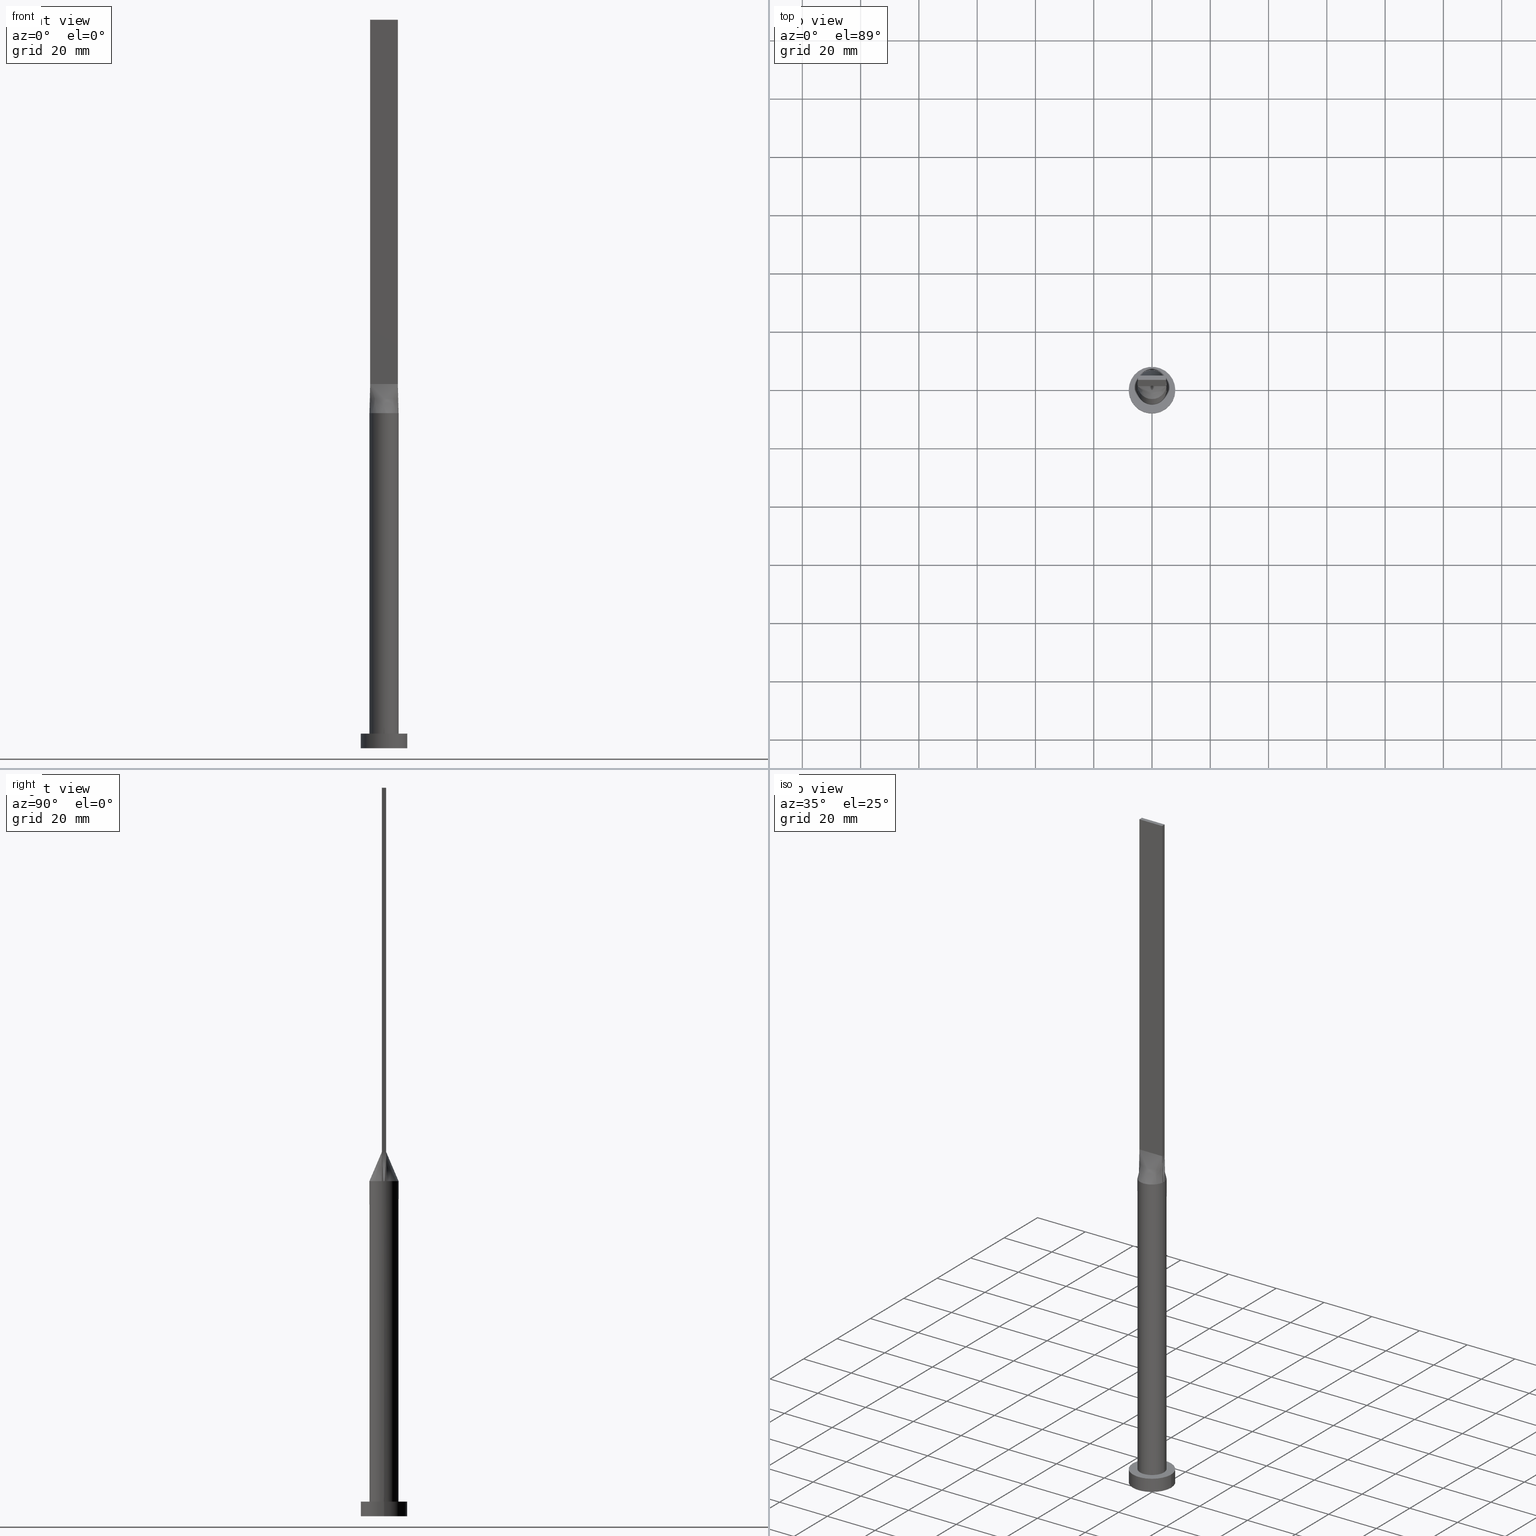
[diagram: canonical four-view strip — front | top / right | iso, engineering-drawing reading convention]
A machine part, canonical four-view strip (front | top / right | iso — engineering-drawing reading convention). The complete STEP part file that produces these views, byte-faithful:
ISO-10303-21;
HEADER;
FILE_DESCRIPTION (( 'STEP AP203' ),
    '1' );
FILE_NAME ('6021.STEP',
    '2023-02-13T09:52:25',
    ( '' ),
    ( '' ),
    'SwSTEP 2.0',
    'SolidWorks 2019',
    '' );
FILE_SCHEMA (( 'CONFIG_CONTROL_DESIGN' ));
ENDSEC;

DATA;
#1 = ORIENTED_EDGE ( 'NONE', *, *, #96, .T. ) ;
#2 = LINE ( 'NONE', #451, #165 ) ;
#3 = CARTESIAN_POINT ( 'NONE',  ( -5.000000000000000000, 0.000000000000000000, 115.0000000000000000 ) ) ;
#4 = CARTESIAN_POINT ( 'NONE',  ( 5.000000000000000000, 6.123233995736766282E-16, 5.000000000000000000 ) ) ;
#5 = VERTEX_POINT ( 'NONE', #126 ) ;
#6 = PLANE ( 'NONE',  #558 ) ;
#7 = ORIENTED_EDGE ( 'NONE', *, *, #380, .F. ) ;
#8 = CARTESIAN_POINT ( 'NONE',  ( -2.177083333333329485, -0.7499999999999995559, 125.0000000000000000 ) ) ;
#9 = DIRECTION ( 'NONE',  ( -0.000000000000000000, -0.000000000000000000, -1.000000000000000000 ) ) ;
#10 = LINE ( 'NONE', #102, #618 ) ;
#11 = CIRCLE ( 'NONE', #471, 8.000000000000000000 ) ;
#12 = ORGANIZATION ( 'NEUR�EN�', 'NEUR�EN�', '' ) ;
#13 = ORIENTED_EDGE ( 'NONE', *, *, #565, .T. ) ;
#14 = CYLINDRICAL_SURFACE ( 'NONE', #71, 8.000000000000000000 ) ;
#15 = DIRECTION ( 'NONE',  ( -0.01887803397728733332, -0.002980742206940063810, -0.9998173508241633423 ) ) ;
#16 = DIRECTION ( 'NONE',  ( -0.000000000000000000, -0.000000000000000000, -1.000000000000000000 ) ) ;
#17 = CARTESIAN_POINT ( 'NONE',  ( 0.000000000000000000, 0.000000000000000000, 115.0000000000000000 ) ) ;
#18 = LINE ( 'NONE', #146, #548 ) ;
#19 = CARTESIAN_POINT ( 'NONE',  ( 2.353781608410061121, -4.424438117685769889, 114.9999999999999716 ) ) ;
#20 = CC_DESIGN_PERSON_AND_ORGANIZATION_ASSIGNMENT ( #330, #185, ( #294 ) ) ;
#21 = CARTESIAN_POINT ( 'NONE',  ( -0.3560391241594593192, 5.000000000000000000, 115.0000000000000426 ) ) ;
#22 = EDGE_LOOP ( 'NONE', ( #478, #386, #287, #105, #353 ) ) ;
#23 = CARTESIAN_POINT ( 'NONE',  ( 0.7119876437238003009, -4.961551549233181646, 115.0000000000000142 ) ) ;
#24 = CIRCLE ( 'NONE', #135, 5.000000000000000000 ) ;
#25 = APPROVAL_PERSON_ORGANIZATION ( #235, #124, #84 ) ;
#26 = CARTESIAN_POINT ( 'NONE',  ( 1.732223102076450250, 4.702695359254404295, 114.9999999999999716 ) ) ;
#27 = ADVANCED_FACE ( 'NONE', ( #130 ), #611, .T. ) ;
#28 = CARTESIAN_POINT ( 'NONE',  ( 0.000000000000000000, 0.000000000000000000, 5.000000000000000000 ) ) ;
#29 = CARTESIAN_POINT ( 'NONE',  ( 1.583333333333338588, -0.7499999999999997780, 125.0000000000000000 ) ) ;
#30 = CARTESIAN_POINT ( 'NONE',  ( -1.732223102076449806, 4.702695359254402518, 114.9999999999999858 ) ) ;
#31 = CARTESIAN_POINT ( 'NONE',  ( 4.750000000000000000, 0.7500000000000002220, 125.0000000000000000 ) ) ;
#32 = VERTEX_POINT ( 'NONE', #182 ) ;
#33 =( LENGTH_UNIT ( ) NAMED_UNIT ( * ) SI_UNIT ( .MILLI., .METRE. ) );
#34 = CARTESIAN_POINT ( 'NONE',  ( 1.400150253878312823, 4.812847332616943419, 115.0000000000000000 ) ) ;
#35 = DIRECTION ( 'NONE',  ( 0.000000000000000000, 0.000000000000000000, 1.000000000000000000 ) ) ;
#36 = EDGE_CURVE ( 'NONE', #321, #604, #570, .T. ) ;
#37 = APPROVAL_DATE_TIME ( #237, #124 ) ;
#38 = ORIENTED_EDGE ( 'NONE', *, *, #539, .F. ) ;
#39 = DIRECTION ( 'NONE',  ( 1.000000000000000000, -6.847592668329501559E-17, 0.000000000000000000 ) ) ;
#40 = PERSON_AND_ORGANIZATION ( #408, #12 ) ;
#41 = LOCAL_TIME ( 10, 52, 25.00000000000000000, #189 ) ;
#42 = EDGE_LOOP ( 'NONE', ( #419, #236, #435, #7, #238, #52 ) ) ;
#43 = APPLICATION_CONTEXT ( 'configuration controlled 3d designs of mechanical parts and assemblies' ) ;
#44 = CARTESIAN_POINT ( 'NONE',  ( 0.000000000000000000, 0.000000000000000000, 115.0000000000000000 ) ) ;
#45 = ORIENTED_EDGE ( 'NONE', *, *, #463, .T. ) ;
#46 = CIRCLE ( 'NONE', #376, 5.000000000000000000 ) ;
#47 = CARTESIAN_POINT ( 'NONE',  ( 4.750000000000000000, -0.7499999999999997780, 250.0000000000000000 ) ) ;
#48 = FACE_OUTER_BOUND ( 'NONE', #42, .T. ) ;
#49 = EDGE_CURVE ( 'NONE', #432, #339, #234, .T. ) ;
#50 = DIRECTION ( 'NONE',  ( -1.000000000000000000, 0.000000000000000000, 0.000000000000000000 ) ) ;
#51 = DIRECTION ( 'NONE',  ( 1.000000000000000000, 0.000000000000000000, 0.000000000000000000 ) ) ;
#52 = ORIENTED_EDGE ( 'NONE', *, *, #576, .F. ) ;
#53 = CARTESIAN_POINT ( 'NONE',  ( 4.938814826645345768, 0.7798128673650538412, 115.0000000000000000 ) ) ;
#54 = DIRECTION ( 'NONE',  ( 1.000000000000000000, 0.000000000000000000, 0.000000000000000000 ) ) ;
#55 = CARTESIAN_POINT ( 'NONE',  ( 2.353781608410062454, 4.424438117685770777, 115.0000000000000000 ) ) ;
#56 = VERTEX_POINT ( 'NONE', #427 ) ;
#57 = DIRECTION ( 'NONE',  ( -1.000000000000000000, 0.000000000000000000, 0.000000000000000000 ) ) ;
#58 = FACE_OUTER_BOUND ( 'NONE', #282, .T. ) ;
#59 = EDGE_CURVE ( 'NONE', #584, #515, #524, .T. ) ;
#60 = CARTESIAN_POINT ( 'NONE',  ( -4.938814826645345768, -0.7798128673650532861, 115.0000000000000000 ) ) ;
#61 = VECTOR ( 'NONE', #245, 1000.000000000000000 ) ;
#62 = DIRECTION ( 'NONE',  ( -0.000000000000000000, -0.000000000000000000, -1.000000000000000000 ) ) ;
#63 = SHAPE_DEFINITION_REPRESENTATION ( #448, #281 ) ;
#64 = DIRECTION ( 'NONE',  ( 1.000000000000000000, 0.000000000000000000, 0.000000000000000000 ) ) ;
#65 = CARTESIAN_POINT ( 'NONE',  ( 3.404830936252118967, -3.673931880027069496, 115.0000000000000568 ) ) ;
#66 = CARTESIAN_POINT ( 'NONE',  ( 4.999625637456156291, 0.2615280553041483547, 115.0000000000000000 ) ) ;
#67 = CARTESIAN_POINT ( 'NONE',  ( -0.9895833333333280413, -0.7499999999999995559, 125.0000000000000000 ) ) ;
#68 = CARTESIAN_POINT ( 'NONE',  ( -1.385416666666718255, 0.7500000000000002220, 125.0000000000000000 ) ) ;
#69 = VERTEX_POINT ( 'NONE', #133 ) ;
#70 = CARTESIAN_POINT ( 'NONE',  ( 4.354166666666667851, -0.7499999999999997780, 125.0000000000000000 ) ) ;
#71 = AXIS2_PLACEMENT_3D ( 'NONE', #208, #403, #544 ) ;
#72 = AXIS2_PLACEMENT_3D ( 'NONE', #506, #106, #268 ) ;
#73 = CARTESIAN_POINT ( 'NONE',  ( -4.029217956433124748, 3.021257902548482033, 115.0000000000000000 ) ) ;
#74 = CARTESIAN_POINT ( 'NONE',  ( -4.029217956433124748, 3.021257902548482033, 115.0000000000000000 ) ) ;
#75 = CARTESIAN_POINT ( 'NONE',  ( -4.332026455536841070, 2.547220758687717801, 115.0000000000000000 ) ) ;
#76 = CARTESIAN_POINT ( 'NONE',  ( 0.3560391241594590972, 5.000000000000001776, 115.0000000000000284 ) ) ;
#77 = ADVANCED_FACE ( 'NONE', ( #334 ), #525, .F. ) ;
#78 = AXIS2_PLACEMENT_3D ( 'NONE', #257, #402, #530 ) ;
#79 = CARTESIAN_POINT ( 'NONE',  ( 4.750000000000000000, 0.7500000000000002220, 250.0000000000000000 ) ) ;
#80 = COORDINATED_UNIVERSAL_TIME_OFFSET ( 1, 0, .AHEAD. ) ;
#81 = CARTESIAN_POINT ( 'NONE',  ( 4.750000000000000000, -0.7499999999999997780, 250.0000000000000000 ) ) ;
#82 = AXIS2_PLACEMENT_3D ( 'NONE', #536, #398, #54 ) ;
#83 = APPROVAL_PERSON_ORGANIZATION ( #349, #516, #302 ) ;
#84 = APPROVAL_ROLE ( '' ) ;
#85 = EDGE_CURVE ( 'NONE', #251, #381, #46, .T. ) ;
#86 = CARTESIAN_POINT ( 'NONE',  ( -4.750000000000000000, -0.7499999999999991118, 125.0000000000000000 ) ) ;
#87 = CARTESIAN_POINT ( 'NONE',  ( 4.979355367185886116, -0.5230561106082984857, 115.0000000000000000 ) ) ;
#88 = CIRCLE ( 'NONE', #571, 5.000000000000000000 ) ;
#89 = CARTESIAN_POINT ( 'NONE',  ( -4.999625637456156291, -0.2615280553041481326, 115.0000000000000000 ) ) ;
#90 = PLANE ( 'NONE',  #78 ) ;
#91 = CARTESIAN_POINT ( 'NONE',  ( -5.000000000000000000, 0.000000000000000000, 5.000000000000000000 ) ) ;
#92 = CARTESIAN_POINT ( 'NONE',  ( -4.750000000000000000, 0.7500000000000002220, 125.0000000000000000 ) ) ;
#93 = ORIENTED_EDGE ( 'NONE', *, *, #521, .F. ) ;
#94 = CARTESIAN_POINT ( 'NONE',  ( 0.000000000000000000, 0.000000000000000000, 0.000000000000000000 ) ) ;
#95 = CARTESIAN_POINT ( 'NONE',  ( -4.750000000000000000, -0.7499999999999991118, 250.0000000000000000 ) ) ;
#96 = EDGE_CURVE ( 'NONE', #118, #69, #352, .T. ) ;
#97 = APPROVAL_DATE_TIME ( #441, #516 ) ;
#98 = ORIENTED_EDGE ( 'NONE', *, *, #358, .F. ) ;
#99 = CARTESIAN_POINT ( 'NONE',  ( -4.999625637456156291, 0.2615280553041492984, 115.0000000000000000 ) ) ;
#100 = CARTESIAN_POINT ( 'NONE',  ( -4.750000000000000000, 0.7500000000000002220, 250.0000000000000000 ) ) ;
#101 = CARTESIAN_POINT ( 'NONE',  ( 4.750000000000000000, -0.7499999999999997780, 250.0000000000000000 ) ) ;
#102 = CARTESIAN_POINT ( 'NONE',  ( 4.844407413322673328, 0.7649064336825270871, 120.0000000000000000 ) ) ;
#103 = CARTESIAN_POINT ( 'NONE',  ( 3.166666666666670960, -0.7499999999999997780, 125.0000000000000000 ) ) ;
#104 = DIRECTION ( 'NONE',  ( -0.01887803397728733332, 0.002980742206940388637, 0.9998173508241633423 ) ) ;
#105 = ORIENTED_EDGE ( 'NONE', *, *, #226, .F. ) ;
#106 = DIRECTION ( 'NONE',  ( 1.000000000000000000, 0.000000000000000000, -0.000000000000000000 ) ) ;
#107 = CARTESIAN_POINT ( 'NONE',  ( 1.732223102076449583, -4.702695359254404295, 115.0000000000000142 ) ) ;
#108 = B_SPLINE_SURFACE_WITH_KNOTS ( 'NONE', 3, 1, ( 
 ( #227, #220 ),
 ( #560, #551 ),
 ( #462, #109 ),
 ( #366, #607 ),
 ( #362, #418 ),
 ( #504, #563 ),
 ( #514, #270 ),
 ( #312, #372 ),
 ( #178, #215 ),
 ( #26, #416 ),
 ( #34, #600 ),
 ( #167, #120 ),
 ( #76, #323 ),
 ( #21, #171 ),
 ( #223, #470 ),
 ( #468, #603 ),
 ( #30, #229 ),
 ( #367, #68 ),
 ( #508, #554 ),
 ( #326, #423 ),
 ( #609, #316 ),
 ( #73, #180 ),
 ( #556, #458 ),
 ( #467, #174 ),
 ( #266, #117 ),
 ( #320, #511 ) ),
 .UNSPECIFIED., .F., .F., .F.,
 ( 4, 2, 2, 2, 2, 2, 2, 2, 2, 2, 2, 2, 4 ),
 ( 2, 2 ),
 ( 0.000000000000000000, 0.1250000000000001388, 0.2500000000000002220, 0.3125000000000002776, 0.3750000000000002776, 0.4375000000000002776, 0.5000000000000002220, 0.5625000000000002220, 0.6250000000000001110, 0.6875000000000001110, 0.7500000000000001110, 0.8750000000000001110, 1.000000000000000000 ),
 ( 0.000000000000000000, 1.000000000000000000 ),
 .UNSPECIFIED. ) ;
#109 = CARTESIAN_POINT ( 'NONE',  ( 3.958333333333315274, 0.7500000000000002220, 125.0000000000000000 ) ) ;
#110 = EDGE_LOOP ( 'NONE', ( #147, #527 ) ) ;
#111 = DIRECTION ( 'NONE',  ( 1.000000000000000000, 0.000000000000000000, -0.000000000000000000 ) ) ;
#112 = CARTESIAN_POINT ( 'NONE',  ( 0.000000000000000000, 0.000000000000000000, 115.0000000000000000 ) ) ;
#113 = CARTESIAN_POINT ( 'NONE',  ( 4.750000000000000000, 0.2500000000000004996, 125.0000000000000000 ) ) ;
#114 = CARTESIAN_POINT ( 'NONE',  ( -3.404830936252120299, 3.673931880027067720, 115.0000000000000142 ) ) ;
#115 = AXIS2_PLACEMENT_3D ( 'NONE', #425, #433, #338 ) ;
#116 = AXIS2_PLACEMENT_3D ( 'NONE', #455, #250, #209 ) ;
#117 = CARTESIAN_POINT ( 'NONE',  ( -4.354166666666676733, 0.7500000000000002220, 125.0000000000000000 ) ) ;
#118 = VERTEX_POINT ( 'NONE', #392 ) ;
#119 = MECHANICAL_CONTEXT ( 'NONE', #161, 'mechanical' ) ;
#120 = CARTESIAN_POINT ( 'NONE',  ( 0.3958333333332766379, 0.7500000000000002220, 125.0000000000000000 ) ) ;
#121 = EDGE_CURVE ( 'NONE', #5, #251, #145, .T. ) ;
#122 = FACE_OUTER_BOUND ( 'NONE', #297, .T. ) ;
#123 = FACE_OUTER_BOUND ( 'NONE', #474, .T. ) ;
#124 = APPROVAL ( #564, 'NEUR�EN�' ) ;
#125 = PERSON_AND_ORGANIZATION ( #408, #12 ) ;
#126 = CARTESIAN_POINT ( 'NONE',  ( -4.938821632323166178, -0.7798139456827060112, 115.0000000000000000 ) ) ;
#127 = DATE_TIME_ROLE ( 'creation_date' ) ;
#128 = EDGE_LOOP ( 'NONE', ( #249, #93 ) ) ;
#129 = EDGE_CURVE ( 'NONE', #584, #389, #255, .T. ) ;
#130 = FACE_OUTER_BOUND ( 'NONE', #190, .T. ) ;
#131 = PERSON_AND_ORGANIZATION_ROLE ( 'design_supplier' ) ;
#132 = ORIENTED_EDGE ( 'NONE', *, *, #49, .F. ) ;
#133 = CARTESIAN_POINT ( 'NONE',  ( -4.750000000000000000, 0.7500000000000002220, 125.0000000000000000 ) ) ;
#134 = VERTEX_POINT ( 'NONE', #91 ) ;
#135 = AXIS2_PLACEMENT_3D ( 'NONE', #112, #466, #581 ) ;
#136 = DIRECTION ( 'NONE',  ( 1.000000000000000000, 2.664535259100375697E-15, 0.000000000000000000 ) ) ;
#137 = ORIENTED_EDGE ( 'NONE', *, *, #248, .F. ) ;
#138 = ADVANCED_FACE ( 'NONE', ( #341 ), #14, .T. ) ;
#139 = CARTESIAN_POINT ( 'NONE',  ( -4.874625637456154514, -1.186344398896584718, 115.0000000000000000 ) ) ;
#140 = CARTESIAN_POINT ( 'NONE',  ( 4.938814826645345768, -0.7798128673650550624, 115.0000000000000000 ) ) ;
#141 = ORIENTED_EDGE ( 'NONE', *, *, #183, .F. ) ;
#142 = CARTESIAN_POINT ( 'NONE',  ( -4.750000000000000000, 0.2500000000000005551, 125.0000000000000000 ) ) ;
#143 = ORIENTED_EDGE ( 'NONE', *, *, #271, .T. ) ;
#144 = FACE_OUTER_BOUND ( 'NONE', #615, .T. ) ;
#145 = CIRCLE ( 'NONE', #82, 5.000000000000000000 ) ;
#146 = CARTESIAN_POINT ( 'NONE',  ( -4.750000000000000000, 0.7500000000000002220, 250.0000000000000000 ) ) ;
#147 = ORIENTED_EDGE ( 'NONE', *, *, #610, .F. ) ;
#148 = ADVANCED_FACE ( 'NONE', ( #306 ), #437, .T. ) ;
#149 = CARTESIAN_POINT ( 'NONE',  ( -1.583333333333328596, -0.7499999999999995559, 125.0000000000000000 ) ) ;
#150 = CARTESIAN_POINT ( 'NONE',  ( 0.000000000000000000, 0.000000000000000000, 5.000000000000000000 ) ) ;
#151 = CALENDAR_DATE ( 2023, 13, 2 ) ;
#152 = ORIENTED_EDGE ( 'NONE', *, *, #49, .T. ) ;
#153 = CARTESIAN_POINT ( 'NONE',  ( 0.7119876437238013001, 4.961551549233180758, 115.0000000000000426 ) ) ;
#154 = FACE_OUTER_BOUND ( 'NONE', #442, .T. ) ;
#155 = CC_DESIGN_DATE_AND_TIME_ASSIGNMENT ( #426, #127, ( #452 ) ) ;
#156 = DIRECTION ( 'NONE',  ( -1.000000000000000000, 0.000000000000000000, 0.000000000000000000 ) ) ;
#157 = VERTEX_POINT ( 'NONE', #4 ) ;
#158 = CARTESIAN_POINT ( 'NONE',  ( 4.332026455536839293, 2.547220758687718689, 115.0000000000000142 ) ) ;
#159 = CARTESIAN_POINT ( 'NONE',  ( 0.9895833333333388104, -0.7499999999999996669, 125.0000000000000000 ) ) ;
#160 = CARTESIAN_POINT ( 'NONE',  ( 4.750000000000000000, 0.7500000000000002220, 250.0000000000000000 ) ) ;
#161 = APPLICATION_CONTEXT ( 'configuration controlled 3d designs of mechanical parts and assemblies' ) ;
#162 = B_SPLINE_SURFACE_WITH_KNOTS ( 'NONE', 3, 1, ( 
 ( #387, #296 ),
 ( #139, #340 ),
 ( #538, #300 ),
 ( #343, #490 ),
 ( #484, #252 ),
 ( #444, #8 ),
 ( #201, #396 ),
 ( #585, #149 ),
 ( #254, #500 ),
 ( #461, #67 ),
 ( #503, #365 ),
 ( #550, #269 ),
 ( #456, #361 ),
 ( #547, #264 ),
 ( #23, #219 ),
 ( #309, #314 ),
 ( #107, #159 ),
 ( #19, #507 ),
 ( #355, #29 ),
 ( #311, #261 ),
 ( #65, #415 ),
 ( #222, #599 ),
 ( #409, #103 ),
 ( #214, #594 ),
 ( #166, #70 ),
 ( #170, #553 ) ),
 .UNSPECIFIED., .F., .F., .F.,
 ( 4, 2, 2, 2, 2, 2, 2, 2, 2, 2, 2, 2, 4 ),
 ( 2, 2 ),
 ( 0.000000000000000000, 0.1250000000000000278, 0.2500000000000001110, 0.3125000000000001665, 0.3750000000000002220, 0.4375000000000002220, 0.5000000000000002220, 0.5625000000000002220, 0.6250000000000002220, 0.6875000000000002220, 0.7500000000000003331, 0.8750000000000002220, 1.000000000000000000 ),
 ( 0.000000000000000000, 1.000000000000000000 ),
 .UNSPECIFIED. ) ;
#163 = CARTESIAN_POINT ( 'NONE',  ( -4.750000000000000000, -0.4999999999999991673, 125.0000000000000000 ) ) ;
#164 = VECTOR ( 'NONE', #586, 1000.000000000000000 ) ;
#165 = VECTOR ( 'NONE', #479, 1000.000000000000000 ) ;
#166 = CARTESIAN_POINT ( 'NONE',  ( 4.874625637456156291, -1.186344398896586938, 114.9999999999999716 ) ) ;
#167 = CARTESIAN_POINT ( 'NONE',  ( 0.7119876437238013001, 4.961551549233180758, 115.0000000000000426 ) ) ;
#168 = EDGE_CURVE ( 'NONE', #515, #69, #211, .T. ) ;
#169 = APPLICATION_PROTOCOL_DEFINITION ( 'international standard', 'config_control_design', 1994, #43 ) ;
#170 = CARTESIAN_POINT ( 'NONE',  ( 4.938814826645345768, -0.7798128673650571718, 115.0000000000000000 ) ) ;
#171 = CARTESIAN_POINT ( 'NONE',  ( -0.1979166666667225571, 0.7500000000000002220, 125.0000000000000000 ) ) ;
#172 = ORIENTED_EDGE ( 'NONE', *, *, #428, .F. ) ;
#173 = CARTESIAN_POINT ( 'NONE',  ( -4.753727492665067444, 1.629988260829202007, 115.0000000000000426 ) ) ;
#174 = CARTESIAN_POINT ( 'NONE',  ( -3.958333333333350801, 0.7500000000000002220, 125.0000000000000000 ) ) ;
#175 = ORIENTED_EDGE ( 'NONE', *, *, #463, .F. ) ;
#176 = CLOSED_SHELL ( 'NONE', ( #401, #138, #230, #597, #535, #148, #446, #286, #477, #288, #291, #602, #373, #77, #27 ) ) ;
#177 = EDGE_CURVE ( 'NONE', #578, #584, #485, .T. ) ;
#178 = CARTESIAN_POINT ( 'NONE',  ( 2.353781608410062454, 4.424438117685770777, 115.0000000000000000 ) ) ;
#179 = ORIENTED_EDGE ( 'NONE', *, *, #499, .F. ) ;
#180 = CARTESIAN_POINT ( 'NONE',  ( -2.770833333333371229, 0.7500000000000002220, 125.0000000000000000 ) ) ;
#181 = CC_DESIGN_DATE_AND_TIME_ASSIGNMENT ( #203, #541, ( #583 ) ) ;
#182 = CARTESIAN_POINT ( 'NONE',  ( -4.999812818728077701, -1.193032336741890821E-15, 115.0000000000000000 ) ) ;
#183 = EDGE_CURVE ( 'NONE', #518, #321, #406, .T. ) ;
#184 = DIRECTION ( 'NONE',  ( 0.000000000000000000, -0.000000000000000000, -1.000000000000000000 ) ) ;
#185 = PERSON_AND_ORGANIZATION_ROLE ( 'creator' ) ;
#186 = ORIENTED_EDGE ( 'NONE', *, *, #59, .T. ) ;
#187 = PRODUCT_RELATED_PRODUCT_CATEGORY ( 'detail', '', ( #267 ) ) ;
#188 = DIRECTION ( 'NONE',  ( 1.000000000000000000, 0.000000000000000000, 0.000000000000000000 ) ) ;
#189 = COORDINATED_UNIVERSAL_TIME_OFFSET ( 1, 0, .AHEAD. ) ;
#190 = EDGE_LOOP ( 'NONE', ( #395, #45, #303, #545 ) ) ;
#191 = VECTOR ( 'NONE', #16, 1000.000000000000000 ) ;
#192 = SECURITY_CLASSIFICATION_LEVEL ( 'unclassified' ) ;
#193 = ORIENTED_EDGE ( 'NONE', *, *, #486, .F. ) ;
#194 = CYLINDRICAL_SURFACE ( 'NONE', #557, 8.000000000000000000 ) ;
#195 = ORIENTED_EDGE ( 'NONE', *, *, #177, .F. ) ;
#196 = DIRECTION ( 'NONE',  ( 0.000000000000000000, 0.000000000000000000, 1.000000000000000000 ) ) ;
#197 = B_SPLINE_CURVE_WITH_KNOTS ( 'NONE', 3,
 ( #577, #590, #394, #158, #354, #347, #498, #537, #55, #206, #587, #153, #350, #543, #272, #225, #363, #424, #517, #371, #114, #74, #75, #173, #322, #275 ),
 .UNSPECIFIED., .F., .F.,
 ( 4, 2, 2, 2, 2, 2, 2, 2, 2, 2, 2, 2, 4 ),
 ( 0.000000000000000000, 0.1250000000000001388, 0.2500000000000002220, 0.3125000000000002776, 0.3750000000000002776, 0.4375000000000002776, 0.5000000000000002220, 0.5625000000000002220, 0.6250000000000001110, 0.6875000000000001110, 0.7500000000000001110, 0.8750000000000001110, 1.000000000000000000 ),
 .UNSPECIFIED. ) ;
#198 = CARTESIAN_POINT ( 'NONE',  ( 4.844407413322673328, -0.7649064336825285304, 120.0000000000000000 ) ) ;
#199 = ORIENTED_EDGE ( 'NONE', *, *, #380, .T. ) ;
#200 = LINE ( 'NONE', #47, #61 ) ;
#201 = CARTESIAN_POINT ( 'NONE',  ( -3.168723755431094524, -3.881165404529569152, 114.9999999999999432 ) ) ;
#202 = B_SPLINE_SURFACE_WITH_KNOTS ( 'NONE', 3, 1, ( 
 ( #407, #92 ),
 ( #253, #298 ),
 ( #99, #142 ),
 ( #89, #213 ),
 ( #304, #163 ),
 ( #60, #86 ) ),
 .UNSPECIFIED., .F., .F., .F.,
 ( 4, 2, 4 ),
 ( 2, 2 ),
 ( 0.000000000000000000, 0.5000000000000000000, 1.000000000000000000 ),
 ( 0.000000000000000000, 1.000000000000000000 ),
 .UNSPECIFIED. ) ;
#203 = DATE_AND_TIME ( #151, #359 ) ;
#204 = AXIS2_PLACEMENT_3D ( 'NONE', #574, #348, #310 ) ;
#205 = CIRCLE ( 'NONE', #377, 5.000000000000000000 ) ;
#206 = CARTESIAN_POINT ( 'NONE',  ( 1.732223102076450250, 4.702695359254404295, 114.9999999999999716 ) ) ;
#207 = CARTESIAN_POINT ( 'NONE',  ( -4.750000000000000000, -0.7499999999999991118, 250.0000000000000000 ) ) ;
#208 = CARTESIAN_POINT ( 'NONE',  ( 0.000000000000000000, 0.000000000000000000, 5.000000000000000000 ) ) ;
#209 = DIRECTION ( 'NONE',  ( 1.000000000000000000, 0.000000000000000000, 0.000000000000000000 ) ) ;
#210 = CYLINDRICAL_SURFACE ( 'NONE', #480, 5.000000000000000000 ) ;
#211 = LINE ( 'NONE', #589, #385 ) ;
#212 = ORIENTED_EDGE ( 'NONE', *, *, #168, .F. ) ;
#213 = CARTESIAN_POINT ( 'NONE',  ( -4.750000000000000000, -0.2499999999999992506, 125.0000000000000000 ) ) ;
#214 = CARTESIAN_POINT ( 'NONE',  ( 4.753727492665065668, -1.629988260829203561, 115.0000000000000000 ) ) ;
#215 = CARTESIAN_POINT ( 'NONE',  ( 1.385416666666613450, 0.7500000000000002220, 125.0000000000000000 ) ) ;
#216 = PERSON_AND_ORGANIZATION ( #408, #12 ) ;
#217 = AXIS2_PLACEMENT_3D ( 'NONE', #596, #337, #184 ) ;
#218 = UNCERTAINTY_MEASURE_WITH_UNIT (LENGTH_MEASURE( 1.000000000000000082E-05 ), #33, 'distance_accuracy_value', 'NONE');
#219 = CARTESIAN_POINT ( 'NONE',  ( 0.3958333333333381998, -0.7499999999999994449, 125.0000000000000000 ) ) ;
#220 = CARTESIAN_POINT ( 'NONE',  ( 4.750000000000000000, 0.7500000000000002220, 125.0000000000000000 ) ) ;
#221 = PLANE ( 'NONE',  #72 ) ;
#222 = CARTESIAN_POINT ( 'NONE',  ( 4.029217956433124748, -3.021257902548483365, 115.0000000000000426 ) ) ;
#223 = CARTESIAN_POINT ( 'NONE',  ( -0.7119876437238006339, 4.961551549233178982, 115.0000000000000142 ) ) ;
#224 = ORIENTED_EDGE ( 'NONE', *, *, #610, .T. ) ;
#225 = CARTESIAN_POINT ( 'NONE',  ( -1.400150253878312823, 4.812847332616943419, 115.0000000000000000 ) ) ;
#226 = EDGE_CURVE ( 'NONE', #69, #321, #580, .T. ) ;
#227 = CARTESIAN_POINT ( 'NONE',  ( 4.938814826645345768, 0.7798128673650542853, 115.0000000000000000 ) ) ;
#228 = ORIENTED_EDGE ( 'NONE', *, *, #513, .F. ) ;
#229 = CARTESIAN_POINT ( 'NONE',  ( -0.9895833333333876602, 0.7500000000000002220, 125.0000000000000000 ) ) ;
#230 = ADVANCED_FACE ( 'NONE', ( #144 ), #194, .T. ) ;
#231 = CALENDAR_DATE ( 2023, 13, 2 ) ;
#232 = PERSON_AND_ORGANIZATION ( #408, #12 ) ;
#233 = ORIENTED_EDGE ( 'NONE', *, *, #85, .T. ) ;
#234 = CIRCLE ( 'NONE', #328, 8.000000000000000000 ) ;
#235 = PERSON_AND_ORGANIZATION ( #408, #12 ) ;
#236 = ORIENTED_EDGE ( 'NONE', *, *, #539, .T. ) ;
#237 = DATE_AND_TIME ( #383, #41 ) ;
#238 = ORIENTED_EDGE ( 'NONE', *, *, #457, .F. ) ;
#239 = CC_DESIGN_PERSON_AND_ORGANIZATION_ASSIGNMENT ( #216, #414, ( #267 ) ) ;
#240 = ORIENTED_EDGE ( 'NONE', *, *, #486, .T. ) ;
#241 = CARTESIAN_POINT ( 'NONE',  ( -8.000000000000000000, 0.000000000000000000, 5.000000000000000000 ) ) ;
#242 = VECTOR ( 'NONE', #305, 1000.000000000000000 ) ;
#243 = DIRECTION ( 'NONE',  ( 1.000000000000000000, 0.000000000000000000, 0.000000000000000000 ) ) ;
#244 = ORIENTED_EDGE ( 'NONE', *, *, #364, .F. ) ;
#245 = DIRECTION ( 'NONE',  ( -0.000000000000000000, -0.000000000000000000, -1.000000000000000000 ) ) ;
#246 = CARTESIAN_POINT ( 'NONE',  ( -4.750000000000000000, 0.7500000000000002220, 250.0000000000000000 ) ) ;
#247 = CARTESIAN_POINT ( 'NONE',  ( 4.750000000000000000, -0.2499999999999994726, 125.0000000000000000 ) ) ;
#248 = EDGE_CURVE ( 'NONE', #251, #604, #549, .T. ) ;
#249 = ORIENTED_EDGE ( 'NONE', *, *, #413, .F. ) ;
#250 = DIRECTION ( 'NONE',  ( 0.000000000000000000, 0.000000000000000000, 1.000000000000000000 ) ) ;
#251 = VERTEX_POINT ( 'NONE', #344 ) ;
#252 = CARTESIAN_POINT ( 'NONE',  ( -2.770833333333329929, -0.7499999999999994449, 125.0000000000000000 ) ) ;
#253 = CARTESIAN_POINT ( 'NONE',  ( -4.979355367185886116, 0.5230561106082979306, 115.0000000000000000 ) ) ;
#254 = CARTESIAN_POINT ( 'NONE',  ( -2.353781608410061121, -4.424438117685769889, 114.9999999999999716 ) ) ;
#255 = LINE ( 'NONE', #160, #318 ) ;
#256 = CARTESIAN_POINT ( 'NONE',  ( -4.750000000000000000, -0.7499999999999991118, 250.0000000000000000 ) ) ;
#257 = CARTESIAN_POINT ( 'NONE',  ( -4.750000000000000000, -0.7499999999999991118, 250.0000000000000000 ) ) ;
#258 = CARTESIAN_POINT ( 'NONE',  ( -4.750000000000000000, 0.7500000000000002220, 125.0000000000000000 ) ) ;
#259 = CARTESIAN_POINT ( 'NONE',  ( 4.750000000000000000, 0.7500000000000002220, 125.0000000000000000 ) ) ;
#260 = EDGE_CURVE ( 'NONE', #32, #5, #509, .T. ) ;
#261 = CARTESIAN_POINT ( 'NONE',  ( 1.979166666666672070, -0.7499999999999997780, 125.0000000000000000 ) ) ;
#262 = CARTESIAN_POINT ( 'NONE',  ( 4.938814826645345768, 0.7798128673650538412, 115.0000000000000000 ) ) ;
#263 = ORIENTED_EDGE ( 'NONE', *, *, #513, .T. ) ;
#264 = CARTESIAN_POINT ( 'NONE',  ( 0.1979166666666709040, -0.7499999999999994449, 125.0000000000000000 ) ) ;
#265 = CC_DESIGN_PERSON_AND_ORGANIZATION_ASSIGNMENT ( #125, #616, ( #452 ) ) ;
#266 = CARTESIAN_POINT ( 'NONE',  ( -4.874625637456156291, 1.186344398896586716, 115.0000000000000142 ) ) ;
#267 = PRODUCT ( '6021', '6021', '', ( #119 ) ) ;
#268 = DIRECTION ( 'NONE',  ( -0.000000000000000000, 0.000000000000000000, -1.000000000000000000 ) ) ;
#269 = CARTESIAN_POINT ( 'NONE',  ( -0.3958333333333283188, -0.7499999999999995559, 125.0000000000000000 ) ) ;
#270 = CARTESIAN_POINT ( 'NONE',  ( 1.979166666666618335, 0.7500000000000002220, 125.0000000000000000 ) ) ;
#271 = EDGE_CURVE ( 'NONE', #432, #56, #501, .T. ) ;
#272 = CARTESIAN_POINT ( 'NONE',  ( -0.7119876437238006339, 4.961551549233178982, 115.0000000000000142 ) ) ;
#273 = CARTESIAN_POINT ( 'NONE',  ( 4.750000000000000000, 0.5000000000000004441, 125.0000000000000000 ) ) ;
#274 = ORIENTED_EDGE ( 'NONE', *, *, #428, .T. ) ;
#275 = CARTESIAN_POINT ( 'NONE',  ( -4.938831943662458812, 0.7798155886440081286, 115.0000000000000000 ) ) ;
#276 = CARTESIAN_POINT ( 'NONE',  ( 4.979355367185886116, 0.5230561106082972644, 115.0000000000000000 ) ) ;
#277 = CARTESIAN_POINT ( 'NONE',  ( 0.000000000000000000, 0.000000000000000000, 5.000000000000000000 ) ) ;
#278 = VECTOR ( 'NONE', #540, 1000.000000000000000 ) ;
#279 = EDGE_CURVE ( 'NONE', #157, #134, #519, .T. ) ;
#280 = DIRECTION ( 'NONE',  ( -0.000000000000000000, -0.000000000000000000, -1.000000000000000000 ) ) ;
#281 = ADVANCED_BREP_SHAPE_REPRESENTATION ( '6021', ( #459, #345 ), #284 ) ;
#282 = EDGE_LOOP ( 'NONE', ( #233, #473, #497, #193, #137 ) ) ;
#283 = VECTOR ( 'NONE', #9, 1000.000000000000000 ) ;
#284 =( GEOMETRIC_REPRESENTATION_CONTEXT ( 3 ) GLOBAL_UNCERTAINTY_ASSIGNED_CONTEXT ( ( #218 ) ) GLOBAL_UNIT_ASSIGNED_CONTEXT ( ( #33, #601, #460 ) ) REPRESENTATION_CONTEXT ( 'NONE', 'WORKASPACE' ) );
#285 = DIRECTION ( 'NONE',  ( 0.000000000000000000, 0.000000000000000000, 1.000000000000000000 ) ) ;
#286 = ADVANCED_FACE ( 'NONE', ( #58 ), #528, .T. ) ;
#287 = ORIENTED_EDGE ( 'NONE', *, *, #526, .F. ) ;
#288 = ADVANCED_FACE ( 'NONE', ( #420 ), #108, .T. ) ;
#289 = LINE ( 'NONE', #100, #242 ) ;
#290 = LINE ( 'NONE', #447, #465 ) ;
#291 = ADVANCED_FACE ( 'NONE', ( #123 ), #410, .F. ) ;
#292 = DIRECTION ( 'NONE',  ( 1.000000000000000000, -6.847592668329501559E-17, 0.000000000000000000 ) ) ;
#293 = CARTESIAN_POINT ( 'NONE',  ( 4.750000000000000000, -0.4999999999999995559, 125.0000000000000000 ) ) ;
#294 = PRODUCT_DEFINITION_FORMATION_WITH_SPECIFIED_SOURCE ( 'LIBOVOLN�', '', #267, .NOT_KNOWN. ) ;
#295 = LINE ( 'NONE', #259, #307 ) ;
#296 = CARTESIAN_POINT ( 'NONE',  ( -4.750000000000000000, -0.7499999999999991118, 125.0000000000000000 ) ) ;
#297 = EDGE_LOOP ( 'NONE', ( #263, #152 ) ) ;
#298 = CARTESIAN_POINT ( 'NONE',  ( -4.750000000000000000, 0.5000000000000004441, 125.0000000000000000 ) ) ;
#299 = ORIENTED_EDGE ( 'NONE', *, *, #526, .T. ) ;
#300 = CARTESIAN_POINT ( 'NONE',  ( -3.958333333333332149, -0.7499999999999993339, 125.0000000000000000 ) ) ;
#301 = CARTESIAN_POINT ( 'NONE',  ( 0.000000000000000000, 0.000000000000000000, 5.000000000000000000 ) ) ;
#302 = APPROVAL_ROLE ( '' ) ;
#303 = ORIENTED_EDGE ( 'NONE', *, *, #364, .T. ) ;
#304 = CARTESIAN_POINT ( 'NONE',  ( -4.979355367185885228, -0.5230561106082968204, 115.0000000000000000 ) ) ;
#305 = DIRECTION ( 'NONE',  ( -0.000000000000000000, -0.000000000000000000, -1.000000000000000000 ) ) ;
#306 = FACE_OUTER_BOUND ( 'NONE', #523, .T. ) ;
#307 = VECTOR ( 'NONE', #438, 1000.000000000000000 ) ;
#308 = CARTESIAN_POINT ( 'NONE',  ( 0.000000000000000000, 0.000000000000000000, 0.000000000000000000 ) ) ;
#309 = CARTESIAN_POINT ( 'NONE',  ( 1.400150253878312157, -4.812847332616943419, 115.0000000000000000 ) ) ;
#310 = DIRECTION ( 'NONE',  ( 1.000000000000000000, 0.000000000000000000, 0.000000000000000000 ) ) ;
#311 = CARTESIAN_POINT ( 'NONE',  ( 3.168723755431094080, -3.881165404529570484, 114.9999999999999716 ) ) ;
#312 = CARTESIAN_POINT ( 'NONE',  ( 2.643217737595826566, 4.256483892511437439, 114.9999999999999432 ) ) ;
#313 = CARTESIAN_POINT ( 'NONE',  ( 4.750000000000000000, -0.7499999999999997780, 250.0000000000000000 ) ) ;
#314 = CARTESIAN_POINT ( 'NONE',  ( 0.7916666666666720698, -0.7499999999999995559, 125.0000000000000000 ) ) ;
#315 = DESIGN_CONTEXT ( 'detailed design', #43, 'design' ) ;
#316 = CARTESIAN_POINT ( 'NONE',  ( -2.177083333333377890, 0.7500000000000002220, 125.0000000000000000 ) ) ;
#317 = PLANE ( 'NONE',  #520 ) ;
#318 = VECTOR ( 'NONE', #50, 1000.000000000000000 ) ;
#319 = CC_DESIGN_SECURITY_CLASSIFICATION ( #583, ( #294 ) ) ;
#320 = CARTESIAN_POINT ( 'NONE',  ( -4.938814826645345768, 0.7798128673650545073, 115.0000000000000000 ) ) ;
#321 = VERTEX_POINT ( 'NONE', #613 ) ;
#322 = CARTESIAN_POINT ( 'NONE',  ( -4.874625637456156291, 1.186344398896586716, 115.0000000000000142 ) ) ;
#323 = CARTESIAN_POINT ( 'NONE',  ( 0.1979166666666105356, 0.7500000000000001110, 125.0000000000000000 ) ) ;
#324 = ORIENTED_EDGE ( 'NONE', *, *, #226, .T. ) ;
#325 = DIRECTION ( 'NONE',  ( 1.000000000000000000, 0.000000000000000000, 0.000000000000000000 ) ) ;
#326 = CARTESIAN_POINT ( 'NONE',  ( -3.168723755431092748, 3.881165404529570484, 114.9999999999999289 ) ) ;
#327 = CC_DESIGN_PERSON_AND_ORGANIZATION_ASSIGNMENT ( #232, #131, ( #294 ) ) ;
#328 = AXIS2_PLACEMENT_3D ( 'NONE', #332, #522, #188 ) ;
#329 = CARTESIAN_POINT ( 'NONE',  ( -4.750000000000000000, -0.7499999999999991118, 125.0000000000000000 ) ) ;
#330 = PERSON_AND_ORGANIZATION ( #408, #12 ) ;
#331 = ORIENTED_EDGE ( 'NONE', *, *, #358, .T. ) ;
#332 = CARTESIAN_POINT ( 'NONE',  ( 0.000000000000000000, 0.000000000000000000, 5.000000000000000000 ) ) ;
#333 = EDGE_LOOP ( 'NONE', ( #240, #379, #195, #13 ) ) ;
#334 = FACE_OUTER_BOUND ( 'NONE', #333, .T. ) ;
#335 = VECTOR ( 'NONE', #588, 1000.000000000000000 ) ;
#336 = CC_DESIGN_APPROVAL ( #568, ( #294 ) ) ;
#337 = DIRECTION ( 'NONE',  ( 0.000000000000000000, -1.000000000000000000, 0.000000000000000000 ) ) ;
#338 = DIRECTION ( 'NONE',  ( 1.000000000000000000, 0.000000000000000000, -0.000000000000000000 ) ) ;
#339 = VERTEX_POINT ( 'NONE', #241 ) ;
#340 = CARTESIAN_POINT ( 'NONE',  ( -4.354166666666666075, -0.7499999999999992228, 125.0000000000000000 ) ) ;
#341 = FACE_OUTER_BOUND ( 'NONE', #552, .T. ) ;
#342 = ORIENTED_EDGE ( 'NONE', *, *, #576, .T. ) ;
#343 = CARTESIAN_POINT ( 'NONE',  ( -4.332026455536839293, -2.547220758687717801, 115.0000000000000142 ) ) ;
#344 = CARTESIAN_POINT ( 'NONE',  ( 4.938833698301754893, -0.7798158709413661738, 115.0000000000000000 ) ) ;
#345 = AXIS2_PLACEMENT_3D ( 'NONE', #608, #35, #555 ) ;
#346 = PERSON_AND_ORGANIZATION ( #408, #12 ) ;
#347 = CARTESIAN_POINT ( 'NONE',  ( 3.404830936252119411, 3.673931880027066388, 115.0000000000000142 ) ) ;
#348 = DIRECTION ( 'NONE',  ( 0.000000000000000000, 0.000000000000000000, 1.000000000000000000 ) ) ;
#349 = PERSON_AND_ORGANIZATION ( #408, #12 ) ;
#350 = CARTESIAN_POINT ( 'NONE',  ( 0.3560391241594590972, 5.000000000000001776, 115.0000000000000284 ) ) ;
#351 = FACE_OUTER_BOUND ( 'NONE', #512, .T. ) ;
#352 = LINE ( 'NONE', #454, #411 ) ;
#353 = ORIENTED_EDGE ( 'NONE', *, *, #96, .F. ) ;
#354 = CARTESIAN_POINT ( 'NONE',  ( 4.029217956433126524, 3.021257902548482477, 115.0000000000000142 ) ) ;
#355 = CARTESIAN_POINT ( 'NONE',  ( 2.643217737595827455, -4.256483892511438327, 115.0000000000000000 ) ) ;
#356 = DIRECTION ( 'NONE',  ( -1.000000000000000000, 0.000000000000000000, 0.000000000000000000 ) ) ;
#357 = VECTOR ( 'NONE', #104, 1000.000000000000114 ) ;
#358 = EDGE_CURVE ( 'NONE', #389, #69, #289, .T. ) ;
#359 = LOCAL_TIME ( 10, 52, 25.00000000000000000, #492 ) ;
#360 = DIRECTION ( 'NONE',  ( 1.000000000000000000, 0.000000000000000000, -0.000000000000000000 ) ) ;
#361 = CARTESIAN_POINT ( 'NONE',  ( -0.1979166666666623553, -0.7499999999999994449, 125.0000000000000000 ) ) ;
#362 = CARTESIAN_POINT ( 'NONE',  ( 4.029217956433126524, 3.021257902548482477, 115.0000000000000142 ) ) ;
#363 = CARTESIAN_POINT ( 'NONE',  ( -1.732223102076449806, 4.702695359254402518, 114.9999999999999858 ) ) ;
#364 = EDGE_CURVE ( 'NONE', #518, #578, #436, .T. ) ;
#365 = CARTESIAN_POINT ( 'NONE',  ( -0.7916666666666611896, -0.7499999999999995559, 125.0000000000000000 ) ) ;
#366 = CARTESIAN_POINT ( 'NONE',  ( 4.332026455536839293, 2.547220758687718689, 115.0000000000000142 ) ) ;
#367 = CARTESIAN_POINT ( 'NONE',  ( -2.353781608410062010, 4.424438117685770777, 114.9999999999999858 ) ) ;
#368 = ORIENTED_EDGE ( 'NONE', *, *, #36, .T. ) ;
#369 = APPROVAL_PERSON_ORGANIZATION ( #40, #568, #614 ) ;
#370 = VERTEX_POINT ( 'NONE', #53 ) ;
#371 = CARTESIAN_POINT ( 'NONE',  ( -3.168723755431092748, 3.881165404529570484, 114.9999999999999289 ) ) ;
#372 = CARTESIAN_POINT ( 'NONE',  ( 1.583333333333281523, 0.7500000000000002220, 125.0000000000000000 ) ) ;
#373 = ADVANCED_FACE ( 'NONE', ( #154 ), #90, .F. ) ;
#374 = COORDINATED_UNIVERSAL_TIME_OFFSET ( 1, 0, .AHEAD. ) ;
#375 = CALENDAR_DATE ( 2023, 13, 2 ) ;
#376 = AXIS2_PLACEMENT_3D ( 'NONE', #44, #382, #136 ) ;
#377 = AXIS2_PLACEMENT_3D ( 'NONE', #28, #598, #325 ) ;
#378 = APPROVAL_STATUS ( 'not_yet_approved' ) ;
#379 = ORIENTED_EDGE ( 'NONE', *, *, #59, .F. ) ;
#380 = EDGE_CURVE ( 'NONE', #32, #134, #495, .T. ) ;
#381 = VERTEX_POINT ( 'NONE', #453 ) ;
#382 = DIRECTION ( 'NONE',  ( 0.000000000000000000, 0.000000000000000000, 1.000000000000000000 ) ) ;
#383 = CALENDAR_DATE ( 2023, 13, 2 ) ;
#384 = ORIENTED_EDGE ( 'NONE', *, *, #565, .F. ) ;
#385 = VECTOR ( 'NONE', #445, 1000.000000000000000 ) ;
#386 = ORIENTED_EDGE ( 'NONE', *, *, #260, .T. ) ;
#387 = CARTESIAN_POINT ( 'NONE',  ( -4.938814826645345768, -0.7798128673650532861, 115.0000000000000000 ) ) ;
#388 = DIRECTION ( 'NONE',  ( -0.000000000000000000, -0.000000000000000000, -1.000000000000000000 ) ) ;
#389 = VERTEX_POINT ( 'NONE', #246 ) ;
#390 = CARTESIAN_POINT ( 'NONE',  ( -8.000000000000000000, 0.000000000000000000, 0.000000000000000000 ) ) ;
#391 = CARTESIAN_POINT ( 'NONE',  ( 0.000000000000000000, 0.000000000000000000, 115.0000000000000000 ) ) ;
#392 = CARTESIAN_POINT ( 'NONE',  ( -4.938831943662458812, 0.7798155886440081286, 115.0000000000000000 ) ) ;
#393 = ORIENTED_EDGE ( 'NONE', *, *, #271, .F. ) ;
#394 = CARTESIAN_POINT ( 'NONE',  ( 4.753727492665065668, 1.629988260829201563, 115.0000000000000000 ) ) ;
#395 = ORIENTED_EDGE ( 'NONE', *, *, #129, .T. ) ;
#396 = CARTESIAN_POINT ( 'NONE',  ( -1.979166666666662522, -0.7499999999999995559, 125.0000000000000000 ) ) ;
#397 = VECTOR ( 'NONE', #280, 1000.000000000000000 ) ;
#398 = DIRECTION ( 'NONE',  ( 0.000000000000000000, 0.000000000000000000, 1.000000000000000000 ) ) ;
#399 = APPROVAL_STATUS ( 'not_yet_approved' ) ;
#400 = DIRECTION ( 'NONE',  ( -0.01887803397728733332, -0.002980742206940009600, 0.9998173508241633423 ) ) ;
#401 = ADVANCED_FACE ( 'NONE', ( #48 ), #210, .T. ) ;
#402 = DIRECTION ( 'NONE',  ( 6.847592668329501559E-17, 1.000000000000000000, -0.000000000000000000 ) ) ;
#403 = DIRECTION ( 'NONE',  ( -0.000000000000000000, -0.000000000000000000, -1.000000000000000000 ) ) ;
#404 = FACE_OUTER_BOUND ( 'NONE', #128, .T. ) ;
#405 = DIRECTION ( 'NONE',  ( -0.000000000000000000, -0.000000000000000000, -1.000000000000000000 ) ) ;
#406 = LINE ( 'NONE', #95, #283 ) ;
#407 = CARTESIAN_POINT ( 'NONE',  ( -4.938814826645345768, 0.7798128673650545073, 115.0000000000000000 ) ) ;
#408 = PERSON ( 'NEUR�EN�', 'NEUR�EN�', 'NEUR�EN�', ('NEUR�EN�'), ('NEUR�EN�'), ('NEUR�EN�') ) ;
#409 = CARTESIAN_POINT ( 'NONE',  ( 4.332026455536841070, -2.547220758687719577, 115.0000000000000426 ) ) ;
#410 = PLANE ( 'NONE',  #217 ) ;
#411 = VECTOR ( 'NONE', #621, 1000.000000000000114 ) ;
#412 = LOCAL_TIME ( 10, 52, 25.00000000000000000, #487 ) ;
#413 = EDGE_CURVE ( 'NONE', #542, #56, #11, .T. ) ;
#414 = PERSON_AND_ORGANIZATION_ROLE ( 'design_owner' ) ;
#415 = CARTESIAN_POINT ( 'NONE',  ( 2.177083333333338810, -0.7499999999999997780, 125.0000000000000000 ) ) ;
#416 = CARTESIAN_POINT ( 'NONE',  ( 0.9895833333332778592, 0.7500000000000002220, 125.0000000000000000 ) ) ;
#417 = CC_DESIGN_PERSON_AND_ORGANIZATION_ASSIGNMENT ( #346, #532, ( #583 ) ) ;
#418 = CARTESIAN_POINT ( 'NONE',  ( 2.770833333333294402, 0.7500000000000002220, 125.0000000000000000 ) ) ;
#419 = ORIENTED_EDGE ( 'NONE', *, *, #472, .F. ) ;
#420 = FACE_OUTER_BOUND ( 'NONE', #573, .T. ) ;
#421 = VECTOR ( 'NONE', #39, 1000.000000000000000 ) ;
#422 = DIRECTION ( 'NONE',  ( 0.000000000000000000, 0.000000000000000000, 1.000000000000000000 ) ) ;
#423 = CARTESIAN_POINT ( 'NONE',  ( -1.979166666666713148, 0.7500000000000002220, 125.0000000000000000 ) ) ;
#424 = CARTESIAN_POINT ( 'NONE',  ( -2.353781608410062010, 4.424438117685770777, 114.9999999999999858 ) ) ;
#425 = CARTESIAN_POINT ( 'NONE',  ( 0.000000000000000000, 0.000000000000000000, 250.0000000000000000 ) ) ;
#426 = DATE_AND_TIME ( #231, #534 ) ;
#427 = CARTESIAN_POINT ( 'NONE',  ( 8.000000000000000000, 9.797174393178825657E-16, 0.000000000000000000 ) ) ;
#428 = EDGE_CURVE ( 'NONE', #339, #542, #579, .T. ) ;
#429 = ORIENTED_EDGE ( 'NONE', *, *, #183, .T. ) ;
#430 = AXIS2_PLACEMENT_3D ( 'NONE', #301, #491, #243 ) ;
#431 = CC_DESIGN_APPROVAL ( #124, ( #452 ) ) ;
#432 = VERTEX_POINT ( 'NONE', #529 ) ;
#433 = DIRECTION ( 'NONE',  ( 0.000000000000000000, 0.000000000000000000, 1.000000000000000000 ) ) ;
#434 = ORIENTED_EDGE ( 'NONE', *, *, #521, .T. ) ;
#435 = ORIENTED_EDGE ( 'NONE', *, *, #279, .T. ) ;
#436 = LINE ( 'NONE', #207, #449 ) ;
#437 = CYLINDRICAL_SURFACE ( 'NONE', #475, 5.000000000000000000 ) ;
#438 = DIRECTION ( 'NONE',  ( -0.000000000000000000, 1.000000000000000000, -0.000000000000000000 ) ) ;
#439 = DIRECTION ( 'NONE',  ( 0.000000000000000000, 0.000000000000000000, 1.000000000000000000 ) ) ;
#440 = CARTESIAN_POINT ( 'NONE',  ( 8.000000000000000000, 9.797174393178825657E-16, 5.000000000000000000 ) ) ;
#441 = DATE_AND_TIME ( #572, #412 ) ;
#442 = EDGE_LOOP ( 'NONE', ( #368, #384, #244, #429 ) ) ;
#443 = FACE_OUTER_BOUND ( 'NONE', #22, .T. ) ;
#444 = CARTESIAN_POINT ( 'NONE',  ( -3.404830936252120299, -3.673931880027065056, 115.0000000000000142 ) ) ;
#445 = DIRECTION ( 'NONE',  ( -1.000000000000000000, -0.000000000000000000, -0.000000000000000000 ) ) ;
#446 = ADVANCED_FACE ( 'NONE', ( #351 ), #162, .T. ) ;
#447 = CARTESIAN_POINT ( 'NONE',  ( -4.844407413322673328, -0.7649064336825261989, 120.0000000000000000 ) ) ;
#448 = PRODUCT_DEFINITION_SHAPE ( 'NONE', 'NONE',  #452 ) ;
#449 = VECTOR ( 'NONE', #292, 1000.000000000000000 ) ;
#450 = CC_DESIGN_APPROVAL ( #516, ( #583 ) ) ;
#451 = CARTESIAN_POINT ( 'NONE',  ( 5.000000000000000000, 6.123233995736766282E-16, 115.0000000000000000 ) ) ;
#452 = PRODUCT_DEFINITION ( 'NEZN�M�', '', #294, #315 ) ;
#453 = CARTESIAN_POINT ( 'NONE',  ( 4.999812818728077701, 1.241126956226958231E-15, 115.0000000000000000 ) ) ;
#454 = CARTESIAN_POINT ( 'NONE',  ( -4.844407413322673328, 0.7649064336825274202, 120.0000000000000000 ) ) ;
#455 = CARTESIAN_POINT ( 'NONE',  ( 0.000000000000000000, 0.000000000000000000, 0.000000000000000000 ) ) ;
#456 = CARTESIAN_POINT ( 'NONE',  ( -0.3560391241594598188, -5.000000000000001776, 115.0000000000000284 ) ) ;
#457 = EDGE_CURVE ( 'NONE', #118, #32, #24, .T. ) ;
#458 = CARTESIAN_POINT ( 'NONE',  ( -3.166666666666698493, 0.7500000000000002220, 125.0000000000000000 ) ) ;
#459 = MANIFOLD_SOLID_BREP ( 'P�idat vysunut�m5', #176 ) ;
#460 =( NAMED_UNIT ( * ) SI_UNIT ( $, .STERADIAN. ) SOLID_ANGLE_UNIT ( ) );
#461 = CARTESIAN_POINT ( 'NONE',  ( -1.732223102076450250, -4.702695359254402518, 114.9999999999999858 ) ) ;
#462 = CARTESIAN_POINT ( 'NONE',  ( 4.753727492665065668, 1.629988260829201563, 115.0000000000000000 ) ) ;
#463 = EDGE_CURVE ( 'NONE', #389, #518, #18, .T. ) ;
#464 = AXIS2_PLACEMENT_3D ( 'NONE', #546, #482, #51 ) ;
#465 = VECTOR ( 'NONE', #15, 1000.000000000000114 ) ;
#466 = DIRECTION ( 'NONE',  ( 0.000000000000000000, 0.000000000000000000, 1.000000000000000000 ) ) ;
#467 = CARTESIAN_POINT ( 'NONE',  ( -4.753727492665067444, 1.629988260829202007, 115.0000000000000426 ) ) ;
#468 = CARTESIAN_POINT ( 'NONE',  ( -1.400150253878312823, 4.812847332616943419, 115.0000000000000000 ) ) ;
#469 = ORIENTED_EDGE ( 'NONE', *, *, #121, .T. ) ;
#470 = CARTESIAN_POINT ( 'NONE',  ( -0.3958333333333896586, 0.7500000000000002220, 125.0000000000000000 ) ) ;
#471 = AXIS2_PLACEMENT_3D ( 'NONE', #94, #439, #620 ) ;
#472 = EDGE_CURVE ( 'NONE', #381, #370, #88, .T. ) ;
#473 = ORIENTED_EDGE ( 'NONE', *, *, #472, .T. ) ;
#474 = EDGE_LOOP ( 'NONE', ( #561, #98, #505, #186 ) ) ;
#475 = AXIS2_PLACEMENT_3D ( 'NONE', #17, #62, #156 ) ;
#476 = DIRECTION ( 'NONE',  ( -1.000000000000000000, 0.000000000000000000, 0.000000000000000000 ) ) ;
#477 = ADVANCED_FACE ( 'NONE', ( #443 ), #202, .T. ) ;
#478 = ORIENTED_EDGE ( 'NONE', *, *, #457, .T. ) ;
#479 = DIRECTION ( 'NONE',  ( -0.000000000000000000, -0.000000000000000000, -1.000000000000000000 ) ) ;
#480 = AXIS2_PLACEMENT_3D ( 'NONE', #391, #405, #57 ) ;
#481 = CARTESIAN_POINT ( 'NONE',  ( 4.999625637456156291, -0.2615280553041495204, 115.0000000000000000 ) ) ;
#482 = DIRECTION ( 'NONE',  ( 0.000000000000000000, 0.000000000000000000, 1.000000000000000000 ) ) ;
#483 = ORIENTED_EDGE ( 'NONE', *, *, #121, .F. ) ;
#484 = CARTESIAN_POINT ( 'NONE',  ( -4.029217956433126524, -3.021257902548482033, 115.0000000000000142 ) ) ;
#485 = LINE ( 'NONE', #101, #278 ) ;
#486 = EDGE_CURVE ( 'NONE', #604, #515, #295, .T. ) ;
#487 = COORDINATED_UNIVERSAL_TIME_OFFSET ( 1, 0, .AHEAD. ) ;
#488 = CARTESIAN_POINT ( 'NONE',  ( 4.750000000000000000, 0.7500000000000002220, 125.0000000000000000 ) ) ;
#489 = EDGE_LOOP ( 'NONE', ( #324, #141, #175, #331 ) ) ;
#490 = CARTESIAN_POINT ( 'NONE',  ( -3.166666666666663854, -0.7499999999999993339, 125.0000000000000000 ) ) ;
#491 = DIRECTION ( 'NONE',  ( 0.000000000000000000, 0.000000000000000000, 1.000000000000000000 ) ) ;
#492 = COORDINATED_UNIVERSAL_TIME_OFFSET ( 1, 0, .AHEAD. ) ;
#493 = DIRECTION ( 'NONE',  ( 0.000000000000000000, -1.000000000000000000, 0.000000000000000000 ) ) ;
#494 = ORIENTED_EDGE ( 'NONE', *, *, #413, .T. ) ;
#495 = LINE ( 'NONE', #3, #191 ) ;
#496 = LOCAL_TIME ( 10, 52, 25.00000000000000000, #374 ) ;
#497 = ORIENTED_EDGE ( 'NONE', *, *, #499, .T. ) ;
#498 = CARTESIAN_POINT ( 'NONE',  ( 3.168723755431093192, 3.881165404529570040, 114.9999999999999432 ) ) ;
#499 = EDGE_CURVE ( 'NONE', #370, #515, #10, .T. ) ;
#500 = CARTESIAN_POINT ( 'NONE',  ( -1.385416666666661634, -0.7499999999999995559, 125.0000000000000000 ) ) ;
#501 = LINE ( 'NONE', #440, #606 ) ;
#502 = FACE_BOUND ( 'NONE', #110, .T. ) ;
#503 = CARTESIAN_POINT ( 'NONE',  ( -1.400150253878313711, -4.812847332616943419, 115.0000000000000284 ) ) ;
#504 = CARTESIAN_POINT ( 'NONE',  ( 3.404830936252119411, 3.673931880027066388, 115.0000000000000142 ) ) ;
#505 = ORIENTED_EDGE ( 'NONE', *, *, #129, .F. ) ;
#506 = CARTESIAN_POINT ( 'NONE',  ( -4.750000000000000000, 0.7500000000000002220, 250.0000000000000000 ) ) ;
#507 = CARTESIAN_POINT ( 'NONE',  ( 1.385416666666671848, -0.7499999999999997780, 125.0000000000000000 ) ) ;
#508 = CARTESIAN_POINT ( 'NONE',  ( -2.643217737595827455, 4.256483892511438327, 114.9999999999999858 ) ) ;
#509 = CIRCLE ( 'NONE', #204, 5.000000000000000000 ) ;
#510 = CARTESIAN_POINT ( 'NONE',  ( 4.750000000000000000, -0.7499999999999997780, 125.0000000000000000 ) ) ;
#511 = CARTESIAN_POINT ( 'NONE',  ( -4.750000000000000000, 0.7500000000000002220, 125.0000000000000000 ) ) ;
#512 = EDGE_LOOP ( 'NONE', ( #469, #619, #617, #299 ) ) ;
#513 = EDGE_CURVE ( 'NONE', #339, #432, #595, .T. ) ;
#514 = CARTESIAN_POINT ( 'NONE',  ( 3.168723755431093192, 3.881165404529570040, 114.9999999999999432 ) ) ;
#515 = VERTEX_POINT ( 'NONE', #488 ) ;
#516 = APPROVAL ( #399, 'NEUR�EN�' ) ;
#517 = CARTESIAN_POINT ( 'NONE',  ( -2.643217737595827455, 4.256483892511438327, 114.9999999999999858 ) ) ;
#518 = VERTEX_POINT ( 'NONE', #256 ) ;
#519 = CIRCLE ( 'NONE', #430, 5.000000000000000000 ) ;
#520 = AXIS2_PLACEMENT_3D ( 'NONE', #277, #422, #111 ) ;
#521 = EDGE_CURVE ( 'NONE', #56, #542, #566, .T. ) ;
#522 = DIRECTION ( 'NONE',  ( 0.000000000000000000, 0.000000000000000000, 1.000000000000000000 ) ) ;
#523 = EDGE_LOOP ( 'NONE', ( #38, #575, #483, #612, #199, #224 ) ) ;
#524 = LINE ( 'NONE', #79, #397 ) ;
#525 = PLANE ( 'NONE',  #582 ) ;
#526 = EDGE_CURVE ( 'NONE', #321, #5, #290, .T. ) ;
#527 = ORIENTED_EDGE ( 'NONE', *, *, #279, .F. ) ;
#528 = B_SPLINE_SURFACE_WITH_KNOTS ( 'NONE', 3, 1, ( 
 ( #140, #531 ),
 ( #87, #293 ),
 ( #481, #247 ),
 ( #66, #113 ),
 ( #276, #273 ),
 ( #262, #31 ) ),
 .UNSPECIFIED., .F., .F., .F.,
 ( 4, 2, 4 ),
 ( 2, 2 ),
 ( 0.000000000000000000, 0.5000000000000000000, 1.000000000000000000 ),
 ( 0.000000000000000000, 1.000000000000000000 ),
 .UNSPECIFIED. ) ;
#529 = CARTESIAN_POINT ( 'NONE',  ( 8.000000000000000000, 9.797174393178825657E-16, 5.000000000000000000 ) ) ;
#530 = DIRECTION ( 'NONE',  ( -1.000000000000000000, 6.847592668329501559E-17, 0.000000000000000000 ) ) ;
#531 = CARTESIAN_POINT ( 'NONE',  ( 4.750000000000000000, -0.7499999999999997780, 125.0000000000000000 ) ) ;
#532 = PERSON_AND_ORGANIZATION_ROLE ( 'classification_officer' ) ;
#533 = CARTESIAN_POINT ( 'NONE',  ( 0.000000000000000000, 0.000000000000000000, 115.0000000000000000 ) ) ;
#534 = LOCAL_TIME ( 10, 52, 25.00000000000000000, #80 ) ;
#535 = ADVANCED_FACE ( 'NONE', ( #404 ), #6, .F. ) ;
#536 = CARTESIAN_POINT ( 'NONE',  ( 0.000000000000000000, 0.000000000000000000, 115.0000000000000000 ) ) ;
#537 = CARTESIAN_POINT ( 'NONE',  ( 2.643217737595826566, 4.256483892511437439, 114.9999999999999432 ) ) ;
#538 = CARTESIAN_POINT ( 'NONE',  ( -4.753727492665065668, -1.629988260829201119, 115.0000000000000142 ) ) ;
#539 = EDGE_CURVE ( 'NONE', #381, #157, #2, .T. ) ;
#540 = DIRECTION ( 'NONE',  ( 0.000000000000000000, 1.000000000000000000, 0.000000000000000000 ) ) ;
#541 = DATE_TIME_ROLE ( 'classification_date' ) ;
#542 = VERTEX_POINT ( 'NONE', #390 ) ;
#543 = CARTESIAN_POINT ( 'NONE',  ( -0.3560391241594593192, 5.000000000000000000, 115.0000000000000426 ) ) ;
#544 = DIRECTION ( 'NONE',  ( -1.000000000000000000, 0.000000000000000000, 0.000000000000000000 ) ) ;
#545 = ORIENTED_EDGE ( 'NONE', *, *, #177, .T. ) ;
#546 = CARTESIAN_POINT ( 'NONE',  ( 0.000000000000000000, 0.000000000000000000, 5.000000000000000000 ) ) ;
#547 = CARTESIAN_POINT ( 'NONE',  ( 0.3560391241594588196, -5.000000000000000888, 115.0000000000000284 ) ) ;
#548 = VECTOR ( 'NONE', #493, 1000.000000000000000 ) ;
#549 = LINE ( 'NONE', #198, #357 ) ;
#550 = CARTESIAN_POINT ( 'NONE',  ( -0.7119876437238014111, -4.961551549233179870, 115.0000000000000284 ) ) ;
#551 = CARTESIAN_POINT ( 'NONE',  ( 4.354166666666657193, 0.7500000000000002220, 125.0000000000000000 ) ) ;
#552 = EDGE_LOOP ( 'NONE', ( #132, #143, #434, #172 ) ) ;
#553 = CARTESIAN_POINT ( 'NONE',  ( 4.750000000000000000, -0.7499999999999997780, 125.0000000000000000 ) ) ;
#554 = CARTESIAN_POINT ( 'NONE',  ( -1.583333333333383663, 0.7500000000000002220, 125.0000000000000000 ) ) ;
#555 = DIRECTION ( 'NONE',  ( 1.000000000000000000, 0.000000000000000000, 0.000000000000000000 ) ) ;
#556 = CARTESIAN_POINT ( 'NONE',  ( -4.332026455536841070, 2.547220758687717801, 115.0000000000000000 ) ) ;
#557 = AXIS2_PLACEMENT_3D ( 'NONE', #150, #592, #356 ) ;
#558 = AXIS2_PLACEMENT_3D ( 'NONE', #308, #196, #360 ) ;
#559 = APPLICATION_PROTOCOL_DEFINITION ( 'international standard', 'config_control_design', 1994, #161 ) ;
#560 = CARTESIAN_POINT ( 'NONE',  ( 4.874625637456157179, 1.186344398896585606, 115.0000000000000142 ) ) ;
#561 = ORIENTED_EDGE ( 'NONE', *, *, #168, .T. ) ;
#562 = CARTESIAN_POINT ( 'NONE',  ( 4.750000000000000000, 0.7500000000000002220, 250.0000000000000000 ) ) ;
#563 = CARTESIAN_POINT ( 'NONE',  ( 2.177083333333286852, 0.7500000000000002220, 125.0000000000000000 ) ) ;
#564 = APPROVAL_STATUS ( 'not_yet_approved' ) ;
#565 = EDGE_CURVE ( 'NONE', #578, #604, #200, .T. ) ;
#566 = CIRCLE ( 'NONE', #116, 8.000000000000000000 ) ;
#567 = APPROVAL_DATE_TIME ( #569, #568 ) ;
#568 = APPROVAL ( #378, 'NEUR�EN�' ) ;
#569 = DATE_AND_TIME ( #375, #496 ) ;
#570 = LINE ( 'NONE', #329, #421 ) ;
#571 = AXIS2_PLACEMENT_3D ( 'NONE', #533, #593, #64 ) ;
#572 = CALENDAR_DATE ( 2023, 13, 2 ) ;
#573 = EDGE_LOOP ( 'NONE', ( #342, #1, #212, #179 ) ) ;
#574 = CARTESIAN_POINT ( 'NONE',  ( 0.000000000000000000, 0.000000000000000000, 115.0000000000000000 ) ) ;
#575 = ORIENTED_EDGE ( 'NONE', *, *, #85, .F. ) ;
#576 = EDGE_CURVE ( 'NONE', #370, #118, #197, .T. ) ;
#577 = CARTESIAN_POINT ( 'NONE',  ( 4.938814826645345768, 0.7798128673650538412, 115.0000000000000000 ) ) ;
#578 = VERTEX_POINT ( 'NONE', #313 ) ;
#579 = LINE ( 'NONE', #591, #335 ) ;
#580 = LINE ( 'NONE', #258, #164 ) ;
#581 = DIRECTION ( 'NONE',  ( 1.000000000000000000, 0.000000000000000000, 0.000000000000000000 ) ) ;
#582 = AXIS2_PLACEMENT_3D ( 'NONE', #81, #476, #285 ) ;
#583 = SECURITY_CLASSIFICATION ( '', '', #192 ) ;
#584 = VERTEX_POINT ( 'NONE', #562 ) ;
#585 = CARTESIAN_POINT ( 'NONE',  ( -2.643217737595827010, -4.256483892511436551, 114.9999999999999289 ) ) ;
#586 = DIRECTION ( 'NONE',  ( 0.000000000000000000, -1.000000000000000000, 0.000000000000000000 ) ) ;
#587 = CARTESIAN_POINT ( 'NONE',  ( 1.400150253878312823, 4.812847332616943419, 115.0000000000000000 ) ) ;
#588 = DIRECTION ( 'NONE',  ( -0.000000000000000000, -0.000000000000000000, -1.000000000000000000 ) ) ;
#589 = CARTESIAN_POINT ( 'NONE',  ( -4.750000000000000000, 0.7500000000000002220, 125.0000000000000000 ) ) ;
#590 = CARTESIAN_POINT ( 'NONE',  ( 4.874625637456157179, 1.186344398896585606, 115.0000000000000142 ) ) ;
#591 = CARTESIAN_POINT ( 'NONE',  ( -8.000000000000000000, 0.000000000000000000, 5.000000000000000000 ) ) ;
#592 = DIRECTION ( 'NONE',  ( -0.000000000000000000, -0.000000000000000000, -1.000000000000000000 ) ) ;
#593 = DIRECTION ( 'NONE',  ( 0.000000000000000000, 0.000000000000000000, 1.000000000000000000 ) ) ;
#594 = CARTESIAN_POINT ( 'NONE',  ( 3.958333333333335258, -0.7499999999999997780, 125.0000000000000000 ) ) ;
#595 = CIRCLE ( 'NONE', #464, 8.000000000000000000 ) ;
#596 = CARTESIAN_POINT ( 'NONE',  ( 4.750000000000000000, 0.7500000000000002220, 250.0000000000000000 ) ) ;
#597 = ADVANCED_FACE ( 'NONE', ( #502, #122 ), #317, .T. ) ;
#598 = DIRECTION ( 'NONE',  ( 0.000000000000000000, 0.000000000000000000, 1.000000000000000000 ) ) ;
#599 = CARTESIAN_POINT ( 'NONE',  ( 2.770833333333338366, -0.7499999999999997780, 125.0000000000000000 ) ) ;
#600 = CARTESIAN_POINT ( 'NONE',  ( 0.7916666666666102303, 0.7500000000000002220, 125.0000000000000000 ) ) ;
#601 =( NAMED_UNIT ( * ) PLANE_ANGLE_UNIT ( ) SI_UNIT ( $, .RADIAN. ) );
#602 = ADVANCED_FACE ( 'NONE', ( #605 ), #221, .F. ) ;
#603 = CARTESIAN_POINT ( 'NONE',  ( -0.7916666666667221408, 0.7500000000000002220, 125.0000000000000000 ) ) ;
#604 = VERTEX_POINT ( 'NONE', #510 ) ;
#605 = FACE_OUTER_BOUND ( 'NONE', #489, .T. ) ;
#606 = VECTOR ( 'NONE', #388, 1000.000000000000000 ) ;
#607 = CARTESIAN_POINT ( 'NONE',  ( 3.166666666666634100, 0.7500000000000002220, 125.0000000000000000 ) ) ;
#608 = CARTESIAN_POINT ( 'NONE',  ( 0.000000000000000000, 0.000000000000000000, 0.000000000000000000 ) ) ;
#609 = CARTESIAN_POINT ( 'NONE',  ( -3.404830936252120299, 3.673931880027067720, 115.0000000000000142 ) ) ;
#610 = EDGE_CURVE ( 'NONE', #134, #157, #205, .T. ) ;
#611 = PLANE ( 'NONE',  #115 ) ;
#612 = ORIENTED_EDGE ( 'NONE', *, *, #260, .F. ) ;
#613 = CARTESIAN_POINT ( 'NONE',  ( -4.750000000000000000, -0.7499999999999991118, 125.0000000000000000 ) ) ;
#614 = APPROVAL_ROLE ( '' ) ;
#615 = EDGE_LOOP ( 'NONE', ( #393, #228, #274, #494 ) ) ;
#616 = PERSON_AND_ORGANIZATION_ROLE ( 'creator' ) ;
#617 = ORIENTED_EDGE ( 'NONE', *, *, #36, .F. ) ;
#618 = VECTOR ( 'NONE', #400, 1000.000000000000114 ) ;
#619 = ORIENTED_EDGE ( 'NONE', *, *, #248, .T. ) ;
#620 = DIRECTION ( 'NONE',  ( 1.000000000000000000, 0.000000000000000000, 0.000000000000000000 ) ) ;
#621 = DIRECTION ( 'NONE',  ( 0.01887803397728733332, -0.002980742206940074218, 0.9998173508241633423 ) ) ;
ENDSEC;
END-ISO-10303-21;
